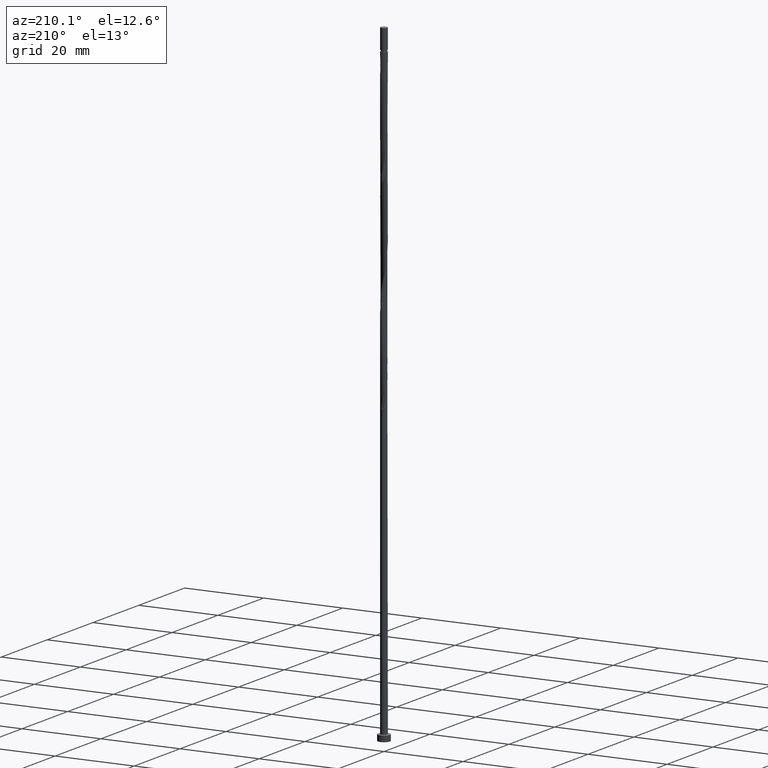
[diagram: clean part render]
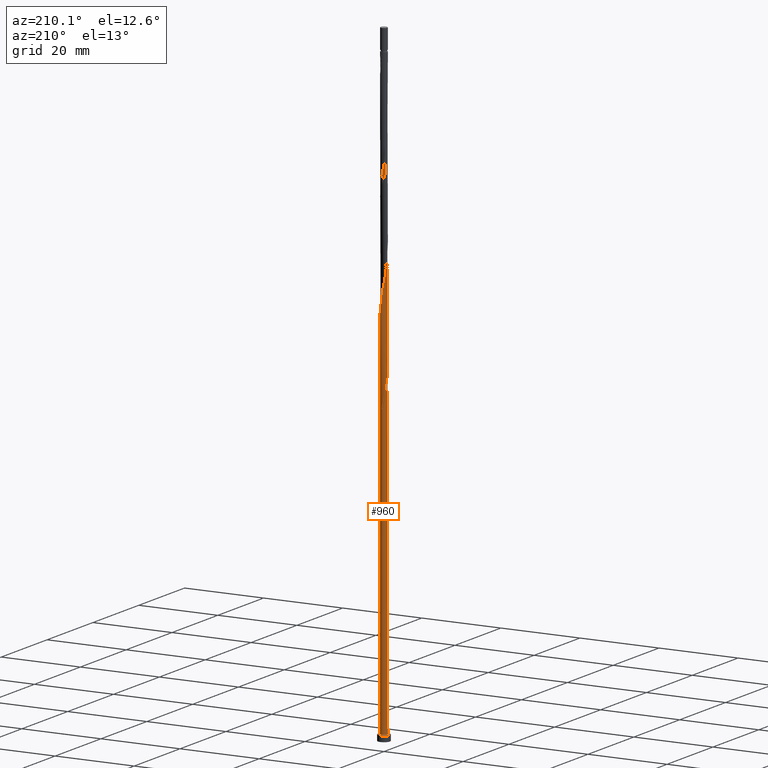
[diagram: same view with one face highlighted and labeled with its STEP entity id]
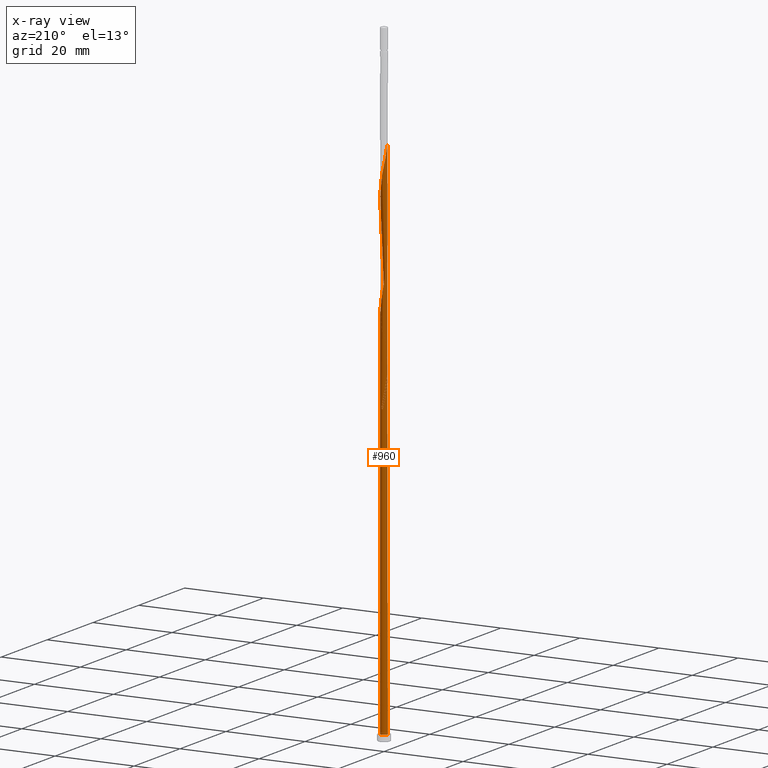
[diagram: x-ray of the same camera — body ghosted, the highlighted face saturated]
A machine part, auxiliary view. The second image highlights one B-rep face of the part: STEP entity #960.
The next image is the same camera in x-ray: the body ghosted, the highlighted face saturated — about 0% of this face is hidden behind the body in this view.
In plain terms, the highlighted cylindrical surface (bore or boss wall) has radius 0.85 mm, axis along (-0, -0, -1).
Its self-contained STEP definition (entity closure, byte-faithful):
#5 = CARTESIAN_POINT ( 'NONE',  ( 0.3080575625204527990, 0.7922124324787885863, 125.5361161127059262 ) ) ;
#8 = ORIENTED_EDGE ( 'NONE', *, *, #1261, .T. ) ;
#12 = CARTESIAN_POINT ( 'NONE',  ( -0.8004490101335350882, 0.2859744432221963395, 80.68763126422101095 ) ) ;
#16 = CARTESIAN_POINT ( 'NONE',  ( -0.8500000000000013101, 3.365284658286592439E-17, 133.7775707243141312 ) ) ;
#18 = CARTESIAN_POINT ( 'NONE',  ( 0.6874568898795134775, 0.4999030151511276165, 123.1118736884634757 ) ) ;
#36 = EDGE_CURVE ( 'NONE', #1269, #800, #253, .T. ) ;
#95 = CARTESIAN_POINT ( 'NONE',  ( 0.6155816871981409921, 0.5987443939730942022, 97.05126762785737071 ) ) ;
#102 = CARTESIAN_POINT ( 'NONE',  ( -0.4219605145438614646, -0.7479204416873481698, 111.5967221733119317 ) ) ;
#109 = CARTESIAN_POINT ( 'NONE',  ( -0.6874568898795132554, -0.4999030151511280606, 83.11187368846344725 ) ) ;
#117 = CARTESIAN_POINT ( 'NONE',  ( -0.5187711008710009786, -0.6733324178302214635, 84.32399490058469382 ) ) ;
#119 = VERTEX_POINT ( 'NONE', #1451 ) ;
#121 = DIRECTION ( 'NONE',  ( -1.000000000000000000, 0.000000000000000000, 0.000000000000000000 ) ) ;
#123 = CARTESIAN_POINT ( 'NONE',  ( 0.1691478643081261446, -0.8330000000000011839, 87.96035853694830564 ) ) ;
#130 = CARTESIAN_POINT ( 'NONE',  ( -0.8500000000000013101, -1.147935988993315671E-15, 80.44423739098074577 ) ) ;
#133 = CARTESIAN_POINT ( 'NONE',  ( -0.8500000000000010880, 0.02445919754525005194, 82.02104834486429752 ) ) ;
#137 = DIRECTION ( 'NONE',  ( -0.000000000000000000, -0.000000000000000000, -1.000000000000000000 ) ) ;
#139 = CARTESIAN_POINT ( 'NONE',  ( -0.8279900143811164126, 0.1921783965100157532, 132.8088433854331640 ) ) ;
#145 = CARTESIAN_POINT ( 'NONE',  ( -0.5926500393605740324, 0.6093159532179610594, 130.3846009611907562 ) ) ;
#151 = DIRECTION ( 'NONE',  ( 0.000000000000000000, -0.000000000000000000, -1.000000000000000000 ) ) ;
#153 = CARTESIAN_POINT ( 'NONE',  ( 0.7403076900031950736, -0.4176655649226251321, 118.2633888399786173 ) ) ;
#162 = CARTESIAN_POINT ( 'NONE',  ( -0.5050436311029744552, 0.6945261648132781129, 129.7785403551301044 ) ) ;
#209 = AXIS2_PLACEMENT_3D ( 'NONE', #211, #591, #1158 ) ;
#211 = CARTESIAN_POINT ( 'NONE',  ( 0.000000000000000000, 0.000000000000000000, 160.0000000000000000 ) ) ;
#222 = CARTESIAN_POINT ( 'NONE',  ( -0.8004490101335355323, -0.2859744432221965060, 108.5664191430089289 ) ) ;
#229 = CARTESIAN_POINT ( 'NONE',  ( 0.04938054541031326045, -0.8573197913631166456, 114.0209645975543680 ) ) ;
#243 = CARTESIAN_POINT ( 'NONE',  ( 0.7403076900031950736, -0.4176655649226251321, 91.59672217331194588 ) ) ;
#248 = DIRECTION ( 'NONE',  ( 1.000000000000000000, 0.000000000000000000, 0.000000000000000000 ) ) ;
#251 = CARTESIAN_POINT ( 'NONE',  ( 0.4219605145438611316, 0.7479204416873481698, 124.9300555066452745 ) ) ;
#253 = LINE ( 'NONE', #876, #733 ) ;
#257 = CARTESIAN_POINT ( 'NONE',  ( 0.5050436311029744552, -0.6945261648132778909, 116.4452070217967758 ) ) ;
#269 = DIRECTION ( 'NONE',  ( 0.000000000000000000, 0.000000000000000000, 1.000000000000000000 ) ) ;
#271 = CARTESIAN_POINT ( 'NONE',  ( 0.8415659277061851018, 0.1708872501152315648, 121.2936918702816484 ) ) ;
#328 = VERTEX_POINT ( 'NONE', #657 ) ;
#333 = CARTESIAN_POINT ( 'NONE',  ( -0.7403076900031950736, 0.4176655649226250211, 104.9300555066453029 ) ) ;
#340 = CARTESIAN_POINT ( 'NONE',  ( -0.6874568898795132554, -0.4999030151511280606, 109.7785403551301471 ) ) ;
#346 = CARTESIAN_POINT ( 'NONE',  ( -0.6155816871981406591, -0.5987443939730946463, 110.3846009611907135 ) ) ;
#354 = CARTESIAN_POINT ( 'NONE',  ( -0.6155816871981406591, -0.5987443939730946463, 83.71793429452408475 ) ) ;
#356 = ORIENTED_EDGE ( 'NONE', *, *, #1120, .T. ) ;
#361 = CARTESIAN_POINT ( 'NONE',  ( 0.8485935120401006948, 0.04887792265890309601, 94.02096459755436797 ) ) ;
#367 = CARTESIAN_POINT ( 'NONE',  ( -0.6802564476181731656, 0.5241057416226437837, 77.65732823391800821 ) ) ;
#374 = CARTESIAN_POINT ( 'NONE',  ( 0.000000000000000000, 0.000000000000000000, 74.62702520361496283 ) ) ;
#377 = CARTESIAN_POINT ( 'NONE',  ( 0.1941546104970447439, 0.8365044232702290028, 126.1421767187664784 ) ) ;
#384 = CARTESIAN_POINT ( 'NONE',  ( -0.8003589323882166484, 0.3112253882226060919, 132.2027827793725692 ) ) ;
#390 = LINE ( 'NONE', #1203, #1402 ) ;
#392 = CARTESIAN_POINT ( 'NONE',  ( -0.7593320925608857408, 0.4010616363291613085, 80.08157065816044451 ) ) ;
#404 = AXIS2_PLACEMENT_3D ( 'NONE', #374, #151, #121 ) ;
#409 = CARTESIAN_POINT ( 'NONE',  ( -0.8500000000000011990, -1.099326321706954315E-15, 82.14314634958253691 ) ) ;
#411 = AXIS2_PLACEMENT_3D ( 'NONE', #494, #269, #864 ) ;
#451 = CARTESIAN_POINT ( 'NONE',  ( -0.3969794071544568426, 0.7516031867250818621, 102.5058130824028666 ) ) ;
#453 = EDGE_LOOP ( 'NONE', ( #1311, #1182, #1425, #1492, #356, #616, #1399, #8, #808 ) ) ;
#456 =( BOUNDED_CURVE ( )  B_SPLINE_CURVE ( 2, ( #1190, #1336, #962, #754, #741, #367, #1447, #1453, #625, #508, #130 ),
 .UNSPECIFIED., .F., .T. ) 
 B_SPLINE_CURVE_WITH_KNOTS ( ( 3, 2, 2, 2, 2, 3 ),
 ( 0.000000000000000000, 0.01136363636363635354, 0.02272727272727270709, 0.03409090909090906063, 0.04545454545454541417, 0.05452521624175133558 ),
 .UNSPECIFIED. ) 
 CURVE ( )  GEOMETRIC_REPRESENTATION_ITEM ( )  RATIONAL_B_SPLINE_CURVE ( ( 0.9090909090909472523, 0.8998376744372493796, 0.9090909090909472523, 0.8998376744372493796, 0.9090909090909472523, 0.8998376744372493796, 0.9090909090909472523, 0.8998376744372493796, 0.9090909090909472523, 0.9017048011080268655, 0.9061101570135876582 ) ) 
 REPRESENTATION_ITEM ( '' )  );
#459 = CARTESIAN_POINT ( 'NONE',  ( 0.5926500393605740324, -0.6093159532179610594, 90.38460096119075615 ) ) ;
#467 = CARTESIAN_POINT ( 'NONE',  ( -0.8485935120401006948, -0.04887792265890319315, 107.3542979308877108 ) ) ;
#474 = CARTESIAN_POINT ( 'NONE',  ( -0.4219605145438614646, -0.7479204416873481698, 84.93005550664528869 ) ) ;
#479 = CYLINDRICAL_SURFACE ( 'NONE', #209, 0.8499999999999999778 ) ;
#482 = CARTESIAN_POINT ( 'NONE',  ( 0.8004490101335355323, 0.2859744432221963395, 95.23308580967561454 ) ) ;
#490 = CARTESIAN_POINT ( 'NONE',  ( -0.8500000000000018652, 0.09734958827735117060, 133.2916107713427891 ) ) ;
#494 = CARTESIAN_POINT ( 'NONE',  ( 0.000000000000000000, 0.000000000000000000, 1.500000000000000000 ) ) ;
#496 = CARTESIAN_POINT ( 'NONE',  ( -0.6874568898795127003, 0.4999030151511278386, 79.47551005209977859 ) ) ;
#508 = CARTESIAN_POINT ( 'NONE',  ( -0.8500000000000014211, 0.09734958827735362696, 79.95827743800943210 ) ) ;
#578 = CARTESIAN_POINT ( 'NONE',  ( -0.1941546104970446607, -0.8365044232702291138, 86.14217671876647842 ) ) ;
#586 = CARTESIAN_POINT ( 'NONE',  ( -0.3080575625204531320, -0.7922124324787885863, 112.2027827793725550 ) ) ;
#591 = DIRECTION ( 'NONE',  ( -0.000000000000000000, -0.000000000000000000, -1.000000000000000000 ) ) ;
#593 = CARTESIAN_POINT ( 'NONE',  ( 0.6802564476181731656, -0.5241057416226437837, 90.99066156725132259 ) ) ;
#600 = EDGE_CURVE ( 'NONE', #119, #1269, #982, .T. ) ;
#601 = CARTESIAN_POINT ( 'NONE',  ( -0.8500000000000011990, -0.02445919754525008316, 80.56633539569895675 ) ) ;
#606 = CARTESIAN_POINT ( 'NONE',  ( -0.8415659277061851018, -0.1708872501152316203, 81.29369187028162003 ) ) ;
#611 = AXIS2_PLACEMENT_3D ( 'NONE', #618, #1077, #248 ) ;
#616 = ORIENTED_EDGE ( 'NONE', *, *, #1208, .F. ) ;
#618 = CARTESIAN_POINT ( 'NONE',  ( 0.000000000000000000, 0.000000000000000000, 1.500000000000000000 ) ) ;
#625 = CARTESIAN_POINT ( 'NONE',  ( -0.8279900143811164126, 0.1921783965100157532, 79.47551005209983543 ) ) ;
#636 = CARTESIAN_POINT ( 'NONE',  ( 0.2889151832059390079, -0.8086802086368855003, 115.2330858096755293 ) ) ;
#644 = CARTESIAN_POINT ( 'NONE',  ( 0.8556210963740159547, -0.07313140479742537281, 120.0815706581604303 ) ) ;
#654 = CARTESIAN_POINT ( 'NONE',  ( -0.5187711008710005345, 0.6733324178302210195, 78.26338883997860307 ) ) ;
#657 = CARTESIAN_POINT ( 'NONE',  ( -0.1691478643081259781, 0.8330000000000010729, 74.62702520361496283 ) ) ;
#679 = CARTESIAN_POINT ( 'NONE',  ( -0.1941546104970446607, 0.8365044232702291138, 76.44520702179679006 ) ) ;
#693 = CIRCLE ( 'NONE', #411, 0.8499999999999999778 ) ;
#699 = CARTESIAN_POINT ( 'NONE',  ( -0.8279900143811164126, 0.1921783965100157532, 106.1421767187665210 ) ) ;
#706 = CARTESIAN_POINT ( 'NONE',  ( -0.8485935120401006948, -0.04887792265890319315, 80.68763126422103937 ) ) ;
#722 = CARTESIAN_POINT ( 'NONE',  ( 0.8279900143811165236, -0.1921783965100156977, 92.80884338543316403 ) ) ;
#729 = CARTESIAN_POINT ( 'NONE',  ( 0.7593320925608859628, 0.4010616363291610864, 95.83914641573618098 ) ) ;
#733 = VECTOR ( 'NONE', #745, 1000.000000000000000 ) ;
#741 = CARTESIAN_POINT ( 'NONE',  ( -0.5926500393605740324, 0.6093159532179610594, 77.05126762785742756 ) ) ;
#743 = CARTESIAN_POINT ( 'NONE',  ( -0.2889151832059391745, 0.8086802086368852782, 128.5664191430088579 ) ) ;
#745 = DIRECTION ( 'NONE',  ( -0.000000000000000000, -0.000000000000000000, -1.000000000000000000 ) ) ;
#754 = CARTESIAN_POINT ( 'NONE',  ( -0.5050436311029744552, 0.6945261648132781129, 76.44520702179677585 ) ) ;
#757 = CARTESIAN_POINT ( 'NONE',  ( 0.8004490101335355323, 0.2859744432221963395, 121.8997524763422717 ) ) ;
#765 = EDGE_CURVE ( 'NONE', #800, #1195, #1514, .T. ) ;
#767 = CARTESIAN_POINT ( 'NONE',  ( 0.5187711008710006455, 0.6733324178302214635, 124.3239949005846938 ) ) ;
#800 = VERTEX_POINT ( 'NONE', #409 ) ;
#808 = ORIENTED_EDGE ( 'NONE', *, *, #765, .F. ) ;
#820 = CARTESIAN_POINT ( 'NONE',  ( -0.8003589323882166484, 0.3112253882226060919, 105.5361161127058693 ) ) ;
#826 = CARTESIAN_POINT ( 'NONE',  ( -0.1941546104970446607, -0.8365044232702291138, 112.8088433854331498 ) ) ;
#833 = CARTESIAN_POINT ( 'NONE',  ( -0.5187711008710009786, -0.6733324178302214635, 110.9906615672513652 ) ) ;
#846 = CARTESIAN_POINT ( 'NONE',  ( -0.3080575625204531320, -0.7922124324787885863, 85.53611611270588355 ) ) ;
#851 = CARTESIAN_POINT ( 'NONE',  ( 0.1691478643081263944, 0.8330000000000010729, 74.62702520361496283 ) ) ;
#853 = CARTESIAN_POINT ( 'NONE',  ( -0.8500000000000013101, 3.365284658286592439E-17, 133.7775707243141312 ) ) ;
#859 = CARTESIAN_POINT ( 'NONE',  ( -0.6155816871981405480, 0.5987443939730946463, 78.86944944603919794 ) ) ;
#864 = DIRECTION ( 'NONE',  ( 1.000000000000000000, 0.000000000000000000, 0.000000000000000000 ) ) ;
#866 = CARTESIAN_POINT ( 'NONE',  ( -0.3969794071544568426, 0.7516031867250818621, 129.1724797490695380 ) ) ;
#874 = CARTESIAN_POINT ( 'NONE',  ( 0.8279900143811165236, -0.1921783965100156977, 119.4755100520998070 ) ) ;
#876 = CARTESIAN_POINT ( 'NONE',  ( -0.8499999999999999778, 0.000000000000000000, 160.0000000000000000 ) ) ;
#882 = CIRCLE ( 'NONE', #404, 0.8499999999999999778 ) ;
#883 = CARTESIAN_POINT ( 'NONE',  ( 0.8003589323882167594, -0.3112253882226057033, 118.8694494460391979 ) ) ;
#920 = CARTESIAN_POINT ( 'NONE',  ( -0.3080575625204527990, 0.7922124324787884753, 77.05126762785739913 ) ) ;
#930 = CARTESIAN_POINT ( 'NONE',  ( -0.5050436311029744552, 0.6945261648132781129, 103.1118736884634615 ) ) ;
#936 = CARTESIAN_POINT ( 'NONE',  ( -0.8500000000000013101, -1.147935988993315671E-15, 80.44423739098074577 ) ) ;
#943 = CARTESIAN_POINT ( 'NONE',  ( 0.2889151832059390079, -0.8086802086368855003, 88.56641914300891472 ) ) ;
#957 = CARTESIAN_POINT ( 'NONE',  ( 0.07238703254336580073, 0.8469121073166728797, 100.0815706581604445 ) ) ;
#960 = ADVANCED_FACE ( 'NONE', ( #1523 ), #479, .T. ) ;
#962 = CARTESIAN_POINT ( 'NONE',  ( -0.3969794071544568426, 0.7516031867250818621, 75.83914641573618098 ) ) ;
#971 = CARTESIAN_POINT ( 'NONE',  ( -0.1691478643081260891, 0.8330000000000011839, 127.9603585369483341 ) ) ;
#977 = CARTESIAN_POINT ( 'NONE',  ( 0.6802564476181731656, -0.5241057416226437837, 117.6573282339180224 ) ) ;
#982 =( BOUNDED_CURVE ( )  B_SPLINE_CURVE ( 2, ( #936, #601, #706, #606, #1179, #1415, #109, #354, #117, #474, #846, #578, #1295, #1309, #123, #943, #1518, #1071, #459, #593, #243, #1058, #722, #1542, #361, #1422, #482, #729, #1065, #95, #1534, #1302, #1430, #1173, #957, #1193, #1079, #1526, #451, #930, #1186, #1403, #333, #820, #699, #1409, #467, #1166, #222, #1050, #340, #346, #833, #102, #586, #826, #1286, #229, #994, #636, #1442, #257, #1093, #977, #153, #883, #874, #644, #1331, #271, #757, #1205, #18, #1315, #767, #251, #5, #377, #1338, #1462, #971, #743, #866, #162, #145, #1221, #1107, #384, #139, #490, #853 ),
 .UNSPECIFIED., .F., .T. ) 
 B_SPLINE_CURVE_WITH_KNOTS ( ( 3, 2, 2, 2, 2, 2, 2, 2, 2, 2, 2, 2, 2, 2, 2, 2, 2, 2, 2, 2, 2, 2, 2, 2, 2, 2, 2, 2, 2, 2, 2, 2, 2, 2, 2, 2, 2, 2, 2, 2, 2, 2, 2, 2, 2, 3 ),
 ( 0.05452521624175134252, 0.05681818181818176772, 0.06818181818181823228, 0.07954545454545458583, 0.09090909090909093937, 0.1022727272727272929, 0.1136363636363636465, 0.1250000000000000000, 0.1363636363636363535, 0.1477272727272727071, 0.1590909090909090606, 0.1704545454545454142, 0.1818181818181817677, 0.1931818181818182323, 0.2045454545454545858, 0.2159090909090909394, 0.2272727272727272929, 0.2386363636363636465, 0.2500000000000000000, 0.2613636363636363535, 0.2727272727272727071, 0.2840909090909090606, 0.2954545454545454142, 0.3068181818181817677, 0.3181818181818182323, 0.3295454545454545858, 0.3409090909090909394, 0.3522727272727272929, 0.3636363636363636465, 0.3750000000000000000, 0.3863636363636363535, 0.3977272727272727071, 0.4090909090909090606, 0.4204545454545454142, 0.4318181818181817677, 0.4431818181818182323, 0.4545454545454545858, 0.4659090909090909394, 0.4772727272727272929, 0.4886363636363636465, 0.5000000000000000000, 0.5113636363636363535, 0.5227272727272727071, 0.5340909090909091717, 0.5454545454545454142, 0.5545252162417516617 ),
 .UNSPECIFIED. ) 
 CURVE ( )  GEOMETRIC_REPRESENTATION_ITEM ( )  RATIONAL_B_SPLINE_CURVE ( ( 0.9061101570135876582, 0.9072237824201697665, 0.9090909090909472523, 0.8998376744372493796, 0.9090909090909472523, 0.8998376744372493796, 0.9090909090909472523, 0.8998376744372493796, 0.9090909090909472523, 0.8998376744372493796, 0.9090909090909472523, 0.8998376744372493796, 0.9090909090909472523, 0.8998376744372493796, 0.9090909090909472523, 0.8998376744372493796, 0.9090909090909472523, 0.8998376744372493796, 0.9090909090909472523, 0.8998376744372493796, 0.9090909090909472523, 0.8998376744372493796, 0.9090909090909472523, 0.8998376744372493796, 0.9090909090909472523, 0.8998376744372493796, 0.9090909090909472523, 0.8998376744372493796, 0.9090909090909472523, 0.8998376744372493796, 0.9090909090909472523, 0.8998376744372493796, 0.9090909090909472523, 0.8998376744372493796, 0.9090909090909472523, 0.8998376744372493796, 0.9090909090909472523, 0.8998376744372493796, 0.9090909090909472523, 0.8998376744372493796, 0.9090909090909472523, 0.8998376744372493796, 0.9090909090909472523, 0.8998376744372493796, 0.9090909090909472523, 0.8998376744372493796, 0.9090909090909472523, 0.8998376744372493796, 0.9090909090909472523, 0.8998376744372493796, 0.9090909090909472523, 0.8998376744372493796, 0.9090909090909472523, 0.8998376744372493796, 0.9090909090909472523, 0.8998376744372493796, 0.9090909090909472523, 0.8998376744372493796, 0.9090909090909472523, 0.8998376744372493796, 0.9090909090909472523, 0.8998376744372493796, 0.9090909090909472523, 0.8998376744372493796, 0.9090909090909472523, 0.8998376744372493796, 0.9090909090909472523, 0.8998376744372493796, 0.9090909090909472523, 0.8998376744372493796, 0.9090909090909472523, 0.8998376744372493796, 0.9090909090909472523, 0.8998376744372493796, 0.9090909090909472523, 0.8998376744372493796, 0.9090909090909472523, 0.8998376744372493796, 0.9090909090909472523, 0.8998376744372493796, 0.9090909090909472523, 0.8998376744372493796, 0.9090909090909472523, 0.8998376744372493796, 0.9090909090909472523, 0.8998376744372493796, 0.9090909090909472523, 0.8998376744372493796, 0.9090909090909472523, 0.9017048011080267544, 0.9061101570135877692 ) ) 
 REPRESENTATION_ITEM ( '' )  );
#994 = CARTESIAN_POINT ( 'NONE',  ( 0.1691478643081261446, -0.8330000000000011839, 114.6270252036149628 ) ) ;
#1001 = CARTESIAN_POINT ( 'NONE',  ( -0.07238703254336566195, 0.8469121073166727687, 75.83914641573615256 ) ) ;
#1050 = CARTESIAN_POINT ( 'NONE',  ( -0.7593320925608857408, -0.4010616363291613640, 109.1724797490695096 ) ) ;
#1058 = CARTESIAN_POINT ( 'NONE',  ( 0.8003589323882167594, -0.3112253882226057033, 92.20278277937256917 ) ) ;
#1065 = CARTESIAN_POINT ( 'NONE',  ( 0.6874568898795134775, 0.4999030151511276165, 96.44520702179680427 ) ) ;
#1071 = CARTESIAN_POINT ( 'NONE',  ( 0.5050436311029744552, -0.6945261648132778909, 89.77854035513011866 ) ) ;
#1073 = EDGE_CURVE ( 'NONE', #1223, #1298, #1226, .T. ) ;
#1077 = DIRECTION ( 'NONE',  ( 0.000000000000000000, 0.000000000000000000, 1.000000000000000000 ) ) ;
#1079 = CARTESIAN_POINT ( 'NONE',  ( -0.1691478643081260891, 0.8330000000000011839, 101.2936918702816627 ) ) ;
#1085 = CARTESIAN_POINT ( 'NONE',  ( -0.8499999999999999778, 0.000000000000000000, 1.500000000000000000 ) ) ;
#1087 = CARTESIAN_POINT ( 'NONE',  ( -0.8415659277061852128, 0.1708872501152317036, 81.29369187028163424 ) ) ;
#1093 = CARTESIAN_POINT ( 'NONE',  ( 0.5926500393605740324, -0.6093159532179610594, 117.0512676278574133 ) ) ;
#1107 = CARTESIAN_POINT ( 'NONE',  ( -0.7403076900031950736, 0.4176655649226250211, 131.5967221733119459 ) ) ;
#1120 = EDGE_CURVE ( 'NONE', #1298, #1223, #693, .T. ) ;
#1141 = CARTESIAN_POINT ( 'NONE',  ( 0.04938054541031328820, 0.8573197913631166456, 75.23308580967560033 ) ) ;
#1158 = DIRECTION ( 'NONE',  ( -1.000000000000000000, 0.000000000000000000, 0.000000000000000000 ) ) ;
#1166 = CARTESIAN_POINT ( 'NONE',  ( -0.8415659277061851018, -0.1708872501152316203, 107.9603585369482772 ) ) ;
#1173 = CARTESIAN_POINT ( 'NONE',  ( 0.1941546104970447439, 0.8365044232702290028, 99.47551005209982122 ) ) ;
#1179 = CARTESIAN_POINT ( 'NONE',  ( -0.8004490101335355323, -0.2859744432221965060, 81.89975247634225752 ) ) ;
#1182 = ORIENTED_EDGE ( 'NONE', *, *, #600, .F. ) ;
#1186 = CARTESIAN_POINT ( 'NONE',  ( -0.5926500393605740324, 0.6093159532179610594, 103.7179342945240563 ) ) ;
#1190 = CARTESIAN_POINT ( 'NONE',  ( -0.1691478643081259781, 0.8330000000000010729, 74.62702520361496283 ) ) ;
#1192 = EDGE_CURVE ( 'NONE', #328, #119, #456, .T. ) ;
#1193 = CARTESIAN_POINT ( 'NONE',  ( -0.04938054541031315636, 0.8573197913631166456, 100.6876312642210110 ) ) ;
#1195 = VERTEX_POINT ( 'NONE', #851 ) ;
#1199 = CARTESIAN_POINT ( 'NONE',  ( -0.8500000000000011990, -1.099326321706954315E-15, 82.14314634958255112 ) ) ;
#1203 = CARTESIAN_POINT ( 'NONE',  ( -0.8499999999999999778, 0.000000000000000000, 160.0000000000000000 ) ) ;
#1205 = CARTESIAN_POINT ( 'NONE',  ( 0.7593320925608859628, 0.4010616363291610864, 122.5058130824028524 ) ) ;
#1208 = EDGE_CURVE ( 'NONE', #119, #1223, #390, .T. ) ;
#1221 = CARTESIAN_POINT ( 'NONE',  ( -0.6802564476181731656, 0.5241057416226437837, 130.9906615672513226 ) ) ;
#1223 = VERTEX_POINT ( 'NONE', #1085 ) ;
#1226 = CIRCLE ( 'NONE', #611, 0.8499999999999999778 ) ;
#1246 = CARTESIAN_POINT ( 'NONE',  ( 0.1691478643081263944, 0.8330000000000010729, 74.62702520361496283 ) ) ;
#1261 = EDGE_CURVE ( 'NONE', #328, #1195, #882, .T. ) ;
#1269 = VERTEX_POINT ( 'NONE', #16 ) ;
#1286 = CARTESIAN_POINT ( 'NONE',  ( -0.07238703254336570359, -0.8469121073166728797, 113.4149039914937731 ) ) ;
#1295 = CARTESIAN_POINT ( 'NONE',  ( -0.07238703254336570359, -0.8469121073166728797, 86.74823732482711591 ) ) ;
#1298 = VERTEX_POINT ( 'NONE', #1329 ) ;
#1302 = CARTESIAN_POINT ( 'NONE',  ( 0.4219605145438611316, 0.7479204416873481698, 98.26338883997858886 ) ) ;
#1309 = CARTESIAN_POINT ( 'NONE',  ( 0.04938054541031326045, -0.8573197913631166456, 87.35429793088766814 ) ) ;
#1311 = ORIENTED_EDGE ( 'NONE', *, *, #36, .F. ) ;
#1315 = CARTESIAN_POINT ( 'NONE',  ( 0.6155816871981409921, 0.5987443939730942022, 123.7179342945240563 ) ) ;
#1329 = CARTESIAN_POINT ( 'NONE',  ( 0.8499999999999999778, 0.000000000000000000, 1.500000000000000000 ) ) ;
#1331 = CARTESIAN_POINT ( 'NONE',  ( 0.8485935120401006948, 0.04887792265890309601, 120.6876312642210678 ) ) ;
#1336 = CARTESIAN_POINT ( 'NONE',  ( -0.2889151832059391745, 0.8086802086368852782, 75.23308580967557191 ) ) ;
#1338 = CARTESIAN_POINT ( 'NONE',  ( 0.07238703254336580073, 0.8469121073166728797, 126.7482373248271443 ) ) ;
#1376 = CARTESIAN_POINT ( 'NONE',  ( -0.4219605145438612426, 0.7479204416873482808, 77.65732823391797979 ) ) ;
#1399 = ORIENTED_EDGE ( 'NONE', *, *, #1192, .F. ) ;
#1402 = VECTOR ( 'NONE', #137, 1000.000000000000000 ) ;
#1403 = CARTESIAN_POINT ( 'NONE',  ( -0.6802564476181731656, 0.5241057416226437837, 104.3239949005846512 ) ) ;
#1409 = CARTESIAN_POINT ( 'NONE',  ( -0.8556210963740159547, 0.07313140479742542832, 106.7482373248270733 ) ) ;
#1415 = CARTESIAN_POINT ( 'NONE',  ( -0.7593320925608857408, -0.4010616363291613640, 82.50581308240283818 ) ) ;
#1422 = CARTESIAN_POINT ( 'NONE',  ( 0.8415659277061851018, 0.1708872501152315648, 94.62702520361497704 ) ) ;
#1425 = ORIENTED_EDGE ( 'NONE', *, *, #1208, .T. ) ;
#1430 = CARTESIAN_POINT ( 'NONE',  ( 0.3080575625204527990, 0.7922124324787885863, 98.86944944603921215 ) ) ;
#1442 = CARTESIAN_POINT ( 'NONE',  ( 0.3969794071544566205, -0.7516031867250818621, 115.8391464157362094 ) ) ;
#1447 = CARTESIAN_POINT ( 'NONE',  ( -0.7403076900031950736, 0.4176655649226250211, 78.26338883997858886 ) ) ;
#1451 = CARTESIAN_POINT ( 'NONE',  ( -0.8500000000000013101, -1.147935988993315474E-15, 80.44423739098074577 ) ) ;
#1453 = CARTESIAN_POINT ( 'NONE',  ( -0.8003589323882166484, 0.3112253882226060919, 78.86944944603921215 ) ) ;
#1455 = CARTESIAN_POINT ( 'NONE',  ( -0.8485935120401004728, 0.04887792265890329030, 81.89975247634224331 ) ) ;
#1462 = CARTESIAN_POINT ( 'NONE',  ( -0.04938054541031315636, 0.8573197913631166456, 127.3542979308876824 ) ) ;
#1492 = ORIENTED_EDGE ( 'NONE', *, *, #1073, .T. ) ;
#1514 =( BOUNDED_CURVE ( )  B_SPLINE_CURVE ( 2, ( #1199, #133, #1455, #1087, #12, #392, #496, #859, #654, #1376, #920, #679, #1001, #1141, #1246 ),
 .UNSPECIFIED., .F., .T. ) 
 B_SPLINE_CURVE_WITH_KNOTS ( ( 3, 2, 2, 2, 2, 2, 2, 3 ),
 ( 0.9295252162417513286, 0.9318181818181817677, 0.9431818181818182323, 0.9545454545454545858, 0.9659090909090909394, 0.9772727272727272929, 0.9886363636363636465, 1.000000000000000000 ),
 .UNSPECIFIED. ) 
 CURVE ( )  GEOMETRIC_REPRESENTATION_ITEM ( )  RATIONAL_B_SPLINE_CURVE ( ( 0.9061101570135871031, 0.9072237824201693224, 0.9090909090909468082, 0.8998376744372487135, 0.9090909090909468082, 0.8998376744372487135, 0.9090909090909468082, 0.8998376744372487135, 0.9090909090909468082, 0.8998376744372487135, 0.9090909090909468082, 0.8998376744372487135, 0.9090909090909468082, 0.8998376744372487135, 0.9090909090909468082 ) ) 
 REPRESENTATION_ITEM ( '' )  );
#1518 = CARTESIAN_POINT ( 'NONE',  ( 0.3969794071544566205, -0.7516031867250818621, 89.17247974906950958 ) ) ;
#1523 = FACE_OUTER_BOUND ( 'NONE', #453, .T. ) ;
#1526 = CARTESIAN_POINT ( 'NONE',  ( -0.2889151832059391745, 0.8086802086368852782, 101.8997524763422291 ) ) ;
#1534 = CARTESIAN_POINT ( 'NONE',  ( 0.5187711008710006455, 0.6733324178302214635, 97.65732823391802242 ) ) ;
#1542 = CARTESIAN_POINT ( 'NONE',  ( 0.8556210963740159547, -0.07313140479742537281, 93.41490399149373047 ) ) ;